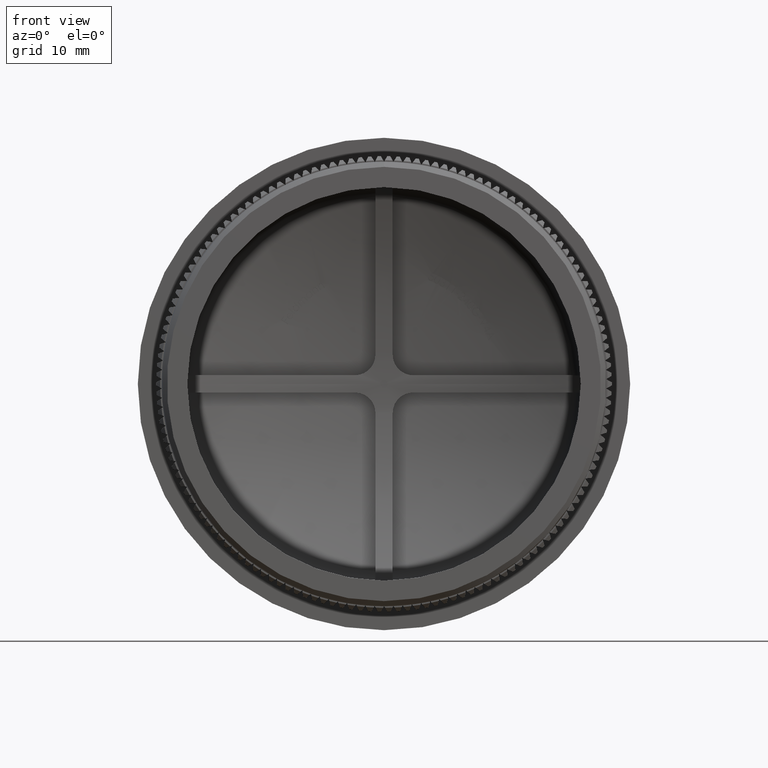
[diagram: clean part render]
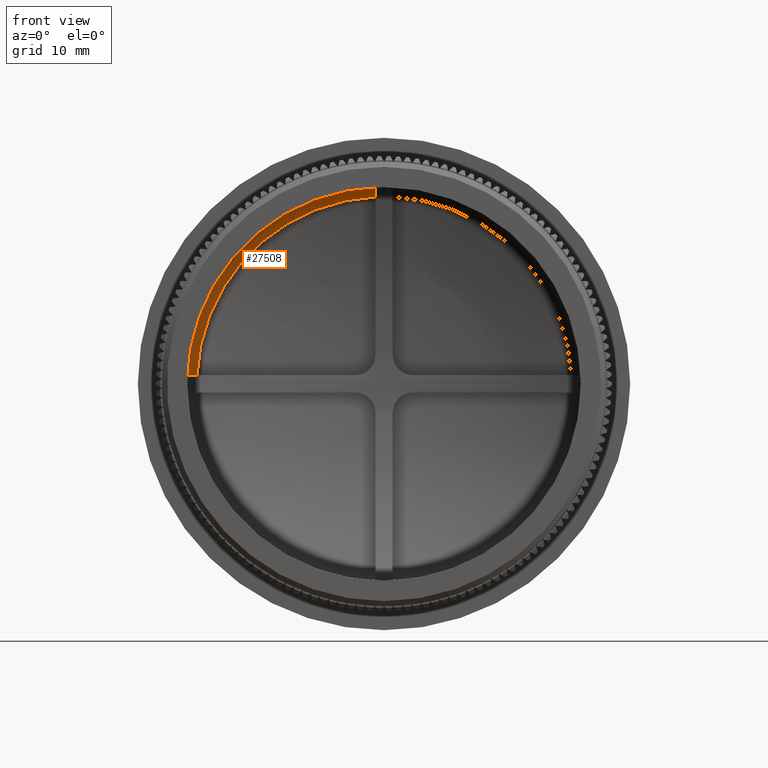
[diagram: same view with one face highlighted and labeled with its STEP entity id]
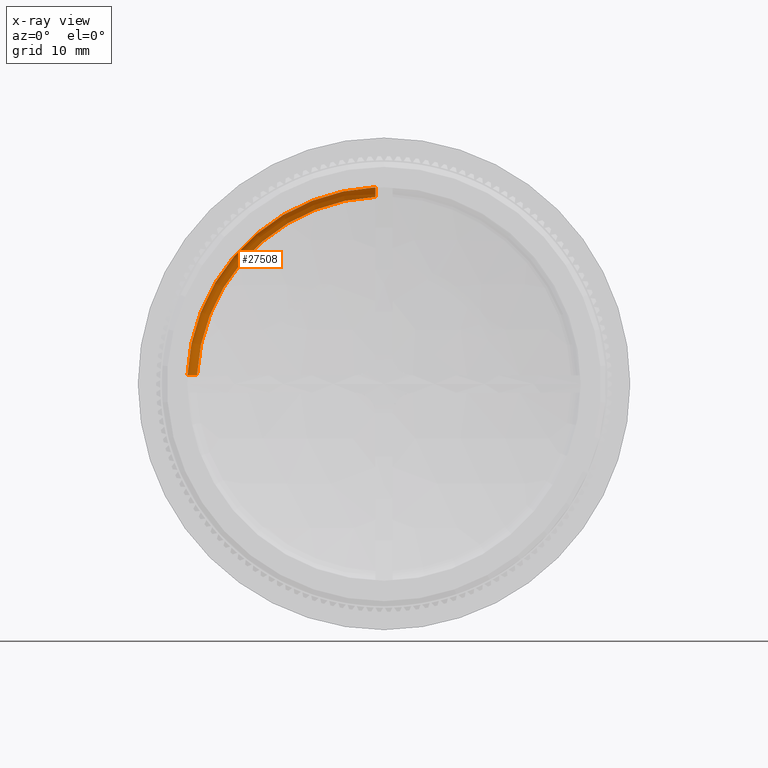
[diagram: x-ray of the same camera — body ghosted, the highlighted face saturated]
A machine part, front view. The second image highlights one B-rep face of the part: STEP entity #27508.
The next image is the same camera in x-ray: the body ghosted, the highlighted face saturated — about 1% of this face is hidden behind the body in this view.
In plain terms, the highlighted toroidal blend (fillet) surface has major radius 17.8 mm and minor (blend) radius 1.5 mm.
Its self-contained STEP definition (entity closure, byte-faithful):
#124 = CARTESIAN_POINT ( 'NONE',  ( -18.94511407705491700, 14.89191145304912200, 0.8499999999999999800 ) ) ;
#1176 = DIRECTION ( 'NONE',  ( -0.0000000000000000000, -1.000000000000000000, -0.0000000000000000000 ) ) ;
#1624 = ORIENTED_EDGE ( 'NONE', *, *, #10134, .T. ) ;
#2196 = DIRECTION ( 'NONE',  ( 0.0000000000000000000, 1.000000000000000000, 0.0000000000000000000 ) ) ;
#4879 = CIRCLE ( 'NONE', #41712, 18.37325178702364100 ) ;
#5864 = CARTESIAN_POINT ( 'NONE',  ( 0.0000000000000000000, 13.93452216768478100, 0.0000000000000000000 ) ) ;
#6954 = DIRECTION ( 'NONE',  ( 0.0000000000000000000, 0.0000000000000000000, -1.000000000000000000 ) ) ;
#7183 = CARTESIAN_POINT ( 'NONE',  ( -19.28127329820310400, 13.93452216769985700, 0.8499999999999999800 ) ) ;
#7496 = CARTESIAN_POINT ( 'NONE',  ( -19.17400905056241100, 14.51026375583904800, 0.8499999999999999800 ) ) ;
#7661 = TOROIDAL_SURFACE ( 'NONE', #42761, 17.79999999999999700, 1.500000000000000000 ) ;
#7695 = CIRCLE ( 'NONE', #28604, 19.29999999999999700 ) ;
#10134 = EDGE_CURVE ( 'NONE', #28689, #42994, #36109, .T. ) ;
#10483 = CARTESIAN_POINT ( 'NONE',  ( -0.8499999999999959800, 14.08277912125146600, 19.28127329820310000 ) ) ;
#10582 = CARTESIAN_POINT ( 'NONE',  ( 0.0000000000000000000, 15.32066155052988400, 0.0000000000000000000 ) ) ;
#11264 = CARTESIAN_POINT ( 'NONE',  ( -18.84512675072643600, 15.00169026813233400, 0.8500000000000000900 ) ) ;
#11411 = CARTESIAN_POINT ( 'NONE',  ( 0.0000000000000000000, 13.93452216768478100, 0.0000000000000000000 ) ) ;
#11632 = VERTEX_POINT ( 'NONE', #28240 ) ;
#12943 = CARTESIAN_POINT ( 'NONE',  ( -18.35357952088275700, 15.32066155052988800, 0.8499999999999996400 ) ) ;
#12980 = EDGE_CURVE ( 'NONE', #11632, #42994, #4879, .T. ) ;
#13499 = VERTEX_POINT ( 'NONE', #20904 ) ;
#14281 = CARTESIAN_POINT ( 'NONE',  ( -19.28127329820165100, 14.08141854854073000, 0.8499999999999999800 ) ) ;
#14852 = ORIENTED_EDGE ( 'NONE', *, *, #20009, .T. ) ;
#16672 = CARTESIAN_POINT ( 'NONE',  ( -0.8499999999999965400, 15.20859284705565500, 18.62485533905557800 ) ) ;
#17413 = CARTESIAN_POINT ( 'NONE',  ( -0.8499999999999954300, 13.93452216768478500, 19.28127329820310400 ) ) ;
#17875 = B_SPLINE_CURVE_WITH_KNOTS ( 'NONE', 3,
 ( #40567, #16672, #20559, #44799, #41328, #27801, #10483, #17413 ),
 .UNSPECIFIED., .F., .F.,
 ( 4, 2, 2, 4 ),
 ( 0.002236030781203851100, 0.003116374265458425500, 0.003556546007585709700, 0.003996717749712994300 ),
 .UNSPECIFIED. ) ;
#20009 = EDGE_CURVE ( 'NONE', #11632, #13499, #17875, .T. ) ;
#20559 = CARTESIAN_POINT ( 'NONE',  ( -0.8499999999999964300, 15.01331859981981300, 18.86403557635680900 ) ) ;
#20904 = CARTESIAN_POINT ( 'NONE',  ( -0.8499999999999954300, 13.93452216768478500, 19.28127329820310400 ) ) ;
#22405 = ORIENTED_EDGE ( 'NONE', *, *, #12980, .F. ) ;
#24356 = CARTESIAN_POINT ( 'NONE',  ( -18.48905320923417500, 15.26469504120120600, 0.8500000000000000900 ) ) ;
#24892 = FACE_OUTER_BOUND ( 'NONE', #36042, .T. ) ;
#26712 = EDGE_CURVE ( 'NONE', #28689, #13499, #7695, .T. ) ;
#27508 = ADVANCED_FACE ( 'NONE', ( #24892 ), #7661, .F. ) ;
#27801 = CARTESIAN_POINT ( 'NONE',  ( -0.8499999999999960900, 14.22791655805719200, 19.25974555068427600 ) ) ;
#28240 = CARTESIAN_POINT ( 'NONE',  ( -0.8499999999999962000, 15.32066155052988800, 18.35357952088276100 ) ) ;
#28427 = CARTESIAN_POINT ( 'NONE',  ( -19.25919725005232800, 14.22975124476735700, 0.8500000000000000900 ) ) ;
#28604 = AXIS2_PLACEMENT_3D ( 'NONE', #5864, #2196, #32968 ) ;
#28689 = VERTEX_POINT ( 'NONE', #29747 ) ;
#29747 = CARTESIAN_POINT ( 'NONE',  ( -19.28127329820310400, 13.93452216769985700, 0.8499999999999999800 ) ) ;
#31634 = DIRECTION ( 'NONE',  ( -0.0000000000000000000, -1.000000000000000000, -0.0000000000000000000 ) ) ;
#32968 = DIRECTION ( 'NONE',  ( 0.0000000000000000000, 0.0000000000000000000, -1.000000000000000000 ) ) ;
#35038 = CARTESIAN_POINT ( 'NONE',  ( -19.10989395704153500, 14.64600919694467300, 0.8500000000000000900 ) ) ;
#36042 = EDGE_LOOP ( 'NONE', ( #40226, #1624, #22405, #14852 ) ) ;
#36109 = B_SPLINE_CURVE_WITH_KNOTS ( 'NONE', 3,
 ( #7183, #14281, #28427, #7496, #35038, #124, #11264, #38494, #24356, #41656 ),
 .UNSPECIFIED., .F., .F.,
 ( 4, 2, 2, 2, 4 ),
 ( 0.008425176140543536400, 0.008864718361929650000, 0.009304260583315765400, 0.009743802804701880800, 0.01018334502608799500 ),
 .UNSPECIFIED. ) ;
#38494 = CARTESIAN_POINT ( 'NONE',  ( -18.61779147526593500, 15.18778772367358700, 0.8500000000000000900 ) ) ;
#40226 = ORIENTED_EDGE ( 'NONE', *, *, #26712, .F. ) ;
#40567 = CARTESIAN_POINT ( 'NONE',  ( -0.8499999999999962000, 15.32066155052988800, 18.35357952088276100 ) ) ;
#41328 = CARTESIAN_POINT ( 'NONE',  ( -0.8499999999999959800, 14.51193442871719200, 19.17351055379251800 ) ) ;
#41656 = CARTESIAN_POINT ( 'NONE',  ( -18.35357952088275700, 15.32066155052988800, 0.8499999999999996400 ) ) ;
#41712 = AXIS2_PLACEMENT_3D ( 'NONE', #10582, #31634, #6954 ) ;
#42761 = AXIS2_PLACEMENT_3D ( 'NONE', #11411, #1176, #42819 ) ;
#42819 = DIRECTION ( 'NONE',  ( 0.0000000000000000000, 0.0000000000000000000, -1.000000000000000000 ) ) ;
#42994 = VERTEX_POINT ( 'NONE', #12943 ) ;
#44799 = CARTESIAN_POINT ( 'NONE',  ( -0.8499999999999962000, 14.64532186989154800, 19.11021530565716400 ) ) ;